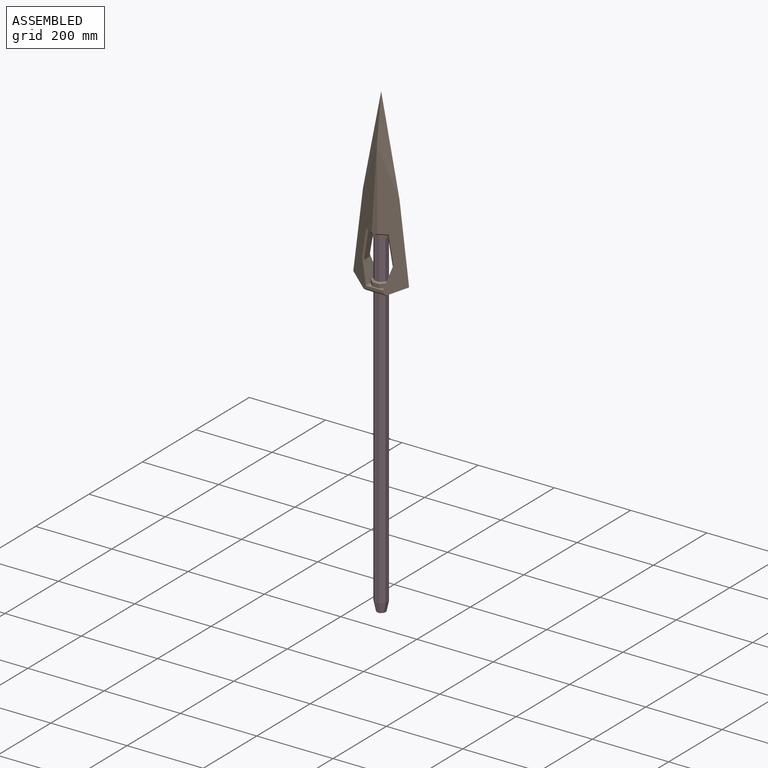
[diagram: assembled view]
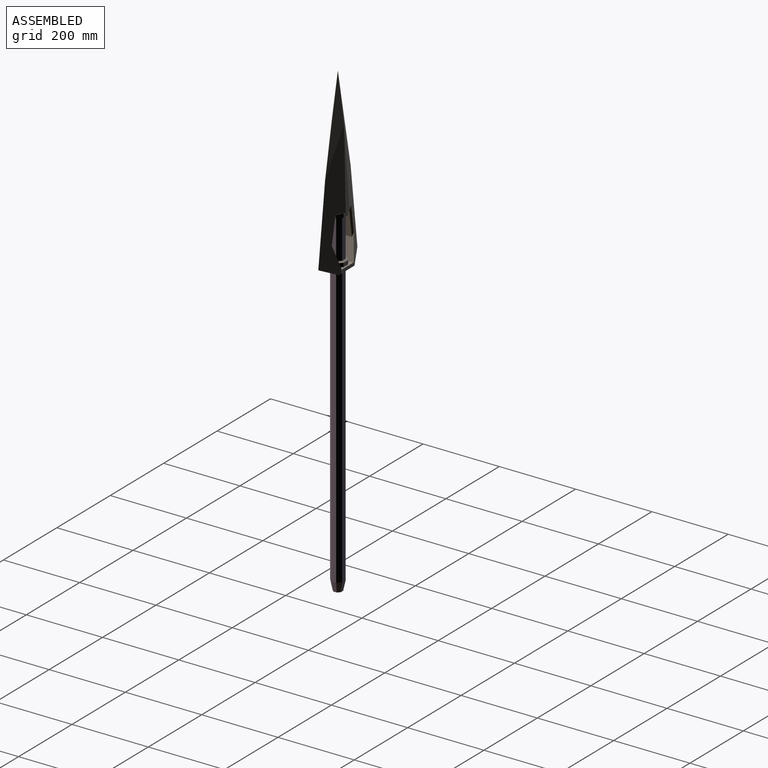
[diagram: assembled view, second angle]
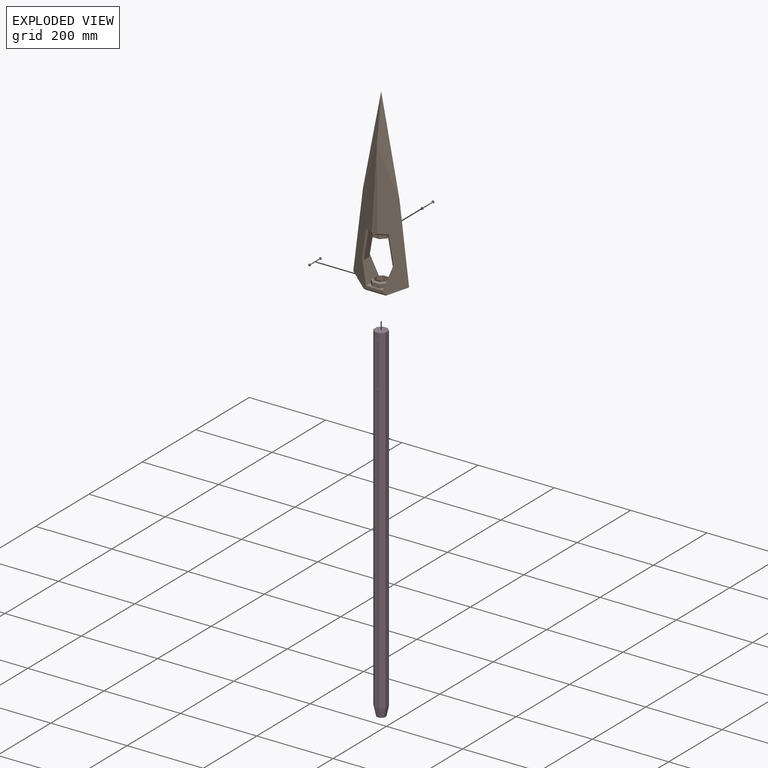
[diagram: exploded view]
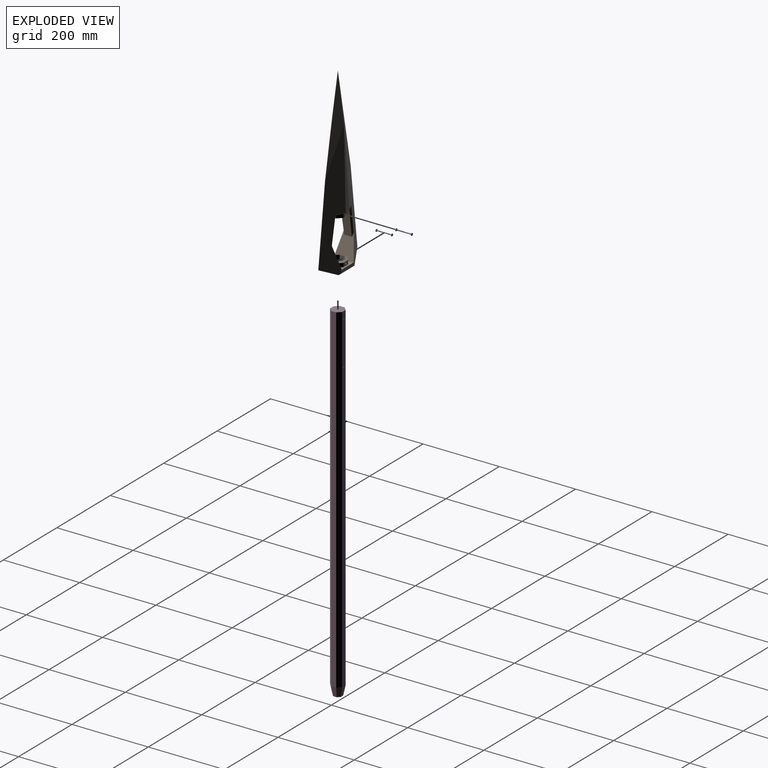
[diagram: exploded view, second angle]
ASSEMBLY  parts=4 mates=3
PART A: 7 faces, bbox 6.4x41.9x6.4 mm
  f0: cylinder r=1.27mm len=39.37mm, axis (0,-1,0), area 314.2mm2, adj f3,f4
  f1: plane 6.35x6.35mm, normal (0,-1,0), area 31.7mm2, adj f2
  f2: cylinder r=3.17mm len=6.35mm, axis (0,1,0), area 25.3mm2, adj f1,f3
  f3: plane 6.35x6.35mm, normal (0,1,0), area 26.6mm2, adj f0,f2
  f4: plane 6.35x6.35mm, normal (0,-1,0), area 26.6mm2, adj f0,f5
  f5: cylinder r=3.17mm len=6.35mm, axis (0,-1,0), area 25.3mm2, adj f4,f6
  f6: plane 6.35x6.35mm, normal (0,1,0), area 31.7mm2, adj f5
PART B: 98 faces, bbox 146.1x50.8x469.4 mm
  f0: plane 344.19x73.03mm, normal (0.44,-0.89,0.06), area 12180.3mm2, adj f1,f6,f9,f11,f17,f31,f32,f72
  f1: plane 344.19x73.03mm, normal (0.44,0.89,0.06), area 12180.3mm2, adj f0,f5,f9,f11,f19,f35,f36,f72
  f2: cylinder r=1.27mm len=3.81mm, axis (0,-1,0), area 30.4mm2, adj f59,f70
  f3: cylinder r=1.27mm len=3.81mm, axis (0,-1,0), area 30.4mm2, adj f28,f68
  f4: plane 50.8x44.45mm, normal (0,0,1), area 803mm2, adj f5,f6,f11,f12,f37,f38,f39,f40
  f5: plane 48.74x10.35mm, normal (0,1,0), area 367.4mm2, adj f1,f4,f11,f12,f16,f96
  f6: plane 48.74x10.35mm, normal (0,-1,0), area 367.4mm2, adj f0,f4,f11,f12,f15,f97
  f7: plane 1.62x0.8mm, normal (-0.94,0,-0.35), area 0.7mm2, adj f15,f16,f73
  f8: plane 50.8x40.64mm, normal (0,0,-1), area 1229.4mm2, adj f21,f22,f23,f24,f25,f26,f27,f28
  f9: plane 1.62x0.8mm, normal (0.94,0,-0.35), area 0.7mm2, adj f0,f1,f72
  f10: plane 76.2x22.92mm, normal (-0.99,0,-0.16), area 1648.7mm2, adj f11,f14,f31,f35
  f11: plane 60.42x50.8mm, normal (-0.95,0,0.3), area 2229.3mm2, adj f0,f1,f4,f5,f6,f10,f31,f35
  f12: plane 60.42x50.8mm, normal (0.95,0,0.3), area 2229.3mm2, adj f4,f5,f6,f13,f15,f16,f30,f33
  f13: plane 76.2x22.92mm, normal (0.99,0,-0.16), area 1648.7mm2, adj f12,f14,f30,f33
  f14: plane 53.29x50.8mm, normal (0,0,-1), area 492.4mm2, adj f10,f13,f29,f30,f31,f32,f33,f34
  f15: plane 344.19x73.03mm, normal (-0.44,-0.89,0.06), area 12180.3mm2, adj f6,f7,f12,f16,f18,f33,f34,f73
  f16: plane 344.19x73.03mm, normal (-0.44,0.89,0.06), area 12180.3mm2, adj f5,f7,f12,f15,f20,f29,f30,f73
  f17: plane 242.35x47.82mm, normal (0.56,-0.82,0.11), area 3561mm2, adj f0,f18,f19
  f18: plane 242.35x47.82mm, normal (-0.56,-0.82,0.11), area 3561mm2, adj f15,f17,f20
  f19: plane 242.35x47.82mm, normal (0.56,0.82,0.11), area 3561mm2, adj f1,f17,f20
  f20: plane 242.35x47.82mm, normal (-0.56,0.82,0.11), area 3561mm2, adj f16,f18,f19
  f21: plane 25.4x9.3mm, normal (-0.71,-0.71,0), area 334mm2, adj f8,f22,f28,f86
  f22: plane 25.4x13.15mm, normal (-1,0,0), area 334mm2, adj f8,f21,f23,f88
  f23: plane 25.4x9.3mm, normal (-0.71,0.71,0), area 334mm2, adj f8,f22,f24,f89
  f24: plane 25.4x13.15mm, normal (0,1,0), area 329mm2, adj f8,f23,f25,f65,f87
  f25: plane 25.4x9.3mm, normal (0.71,0.71,0), area 334mm2, adj f8,f24,f26,f85
  f26: plane 25.4x13.15mm, normal (1,0,0), area 334mm2, adj f8,f25,f27,f83
  f27: plane 25.4x9.3mm, normal (0.71,-0.71,0), area 334mm2, adj f8,f26,f28,f82
  f28: plane 25.4x13.15mm, normal (0,-1,0), area 329mm2, adj f3,f8,f21,f27,f84
  f29: plane 29.38x13.19mm, normal (-0.32,0.65,-0.69), area 124.6mm2, adj f14,f16,f30,f90
  f30: plane 79.52x15.7mm, normal (0.52,0.85,-0.1), area 393.4mm2, adj f12,f13,f14,f16,f29
  f31: plane 79.52x15.7mm, normal (-0.52,-0.85,-0.1), area 393.4mm2, adj f0,f10,f11,f14,f32
  f32: plane 29.38x13.19mm, normal (0.32,-0.65,-0.69), area 124.6mm2, adj f0,f14,f31,f95
  f33: plane 79.52x15.7mm, normal (0.52,-0.85,-0.1), area 393.4mm2, adj f12,f13,f14,f15,f34
  f34: plane 29.38x13.19mm, normal (-0.32,-0.65,-0.69), area 124.6mm2, adj f14,f15,f33,f93
  f35: plane 79.52x15.7mm, normal (-0.52,0.85,-0.1), area 393.4mm2, adj f1,f10,f11,f14,f36
  f36: plane 29.38x13.19mm, normal (0.32,0.65,-0.69), area 124.6mm2, adj f1,f14,f35,f92
  f37: plane 12.28x12.28mm, normal (0.71,-0.71,0), area 176.4mm2, adj f4,f38,f44,f89
  f38: plane 17.36x10.16mm, normal (1,0,0), area 176.4mm2, adj f4,f37,f39,f88
  f39: plane 12.28x12.28mm, normal (0.71,0.71,0), area 176.4mm2, adj f4,f38,f40,f86
  f40: plane 17.36x10.16mm, normal (0,1,0), area 144.7mm2, adj f4,f39,f41,f69,f84
  f41: plane 12.28x12.28mm, normal (-0.71,0.71,0), area 176.4mm2, adj f4,f40,f42,f82
  f42: plane 17.36x10.16mm, normal (-1,0,0), area 176.4mm2, adj f4,f41,f43,f83
  f43: plane 12.28x12.28mm, normal (-0.71,-0.71,0), area 176.4mm2, adj f4,f42,f44,f85
  f44: plane 17.36x10.16mm, normal (0,-1,0), area 144.7mm2, adj f4,f37,f43,f67,f87
  f45: plane 12.28x12.28mm, normal (0.71,-0.71,0), area 176.4mm2, adj f14,f46,f52,f76
  f46: plane 17.36x10.16mm, normal (0,-1,0), area 144.7mm2, adj f14,f45,f47,f64,f78
  f47: plane 12.28x12.28mm, normal (-0.71,-0.71,0), area 176.4mm2, adj f14,f46,f48,f80
  f48: plane 17.36x10.16mm, normal (-1,0,0), area 176.4mm2, adj f14,f47,f49,f81
  f49: plane 12.28x12.28mm, normal (-0.71,0.71,0), area 176.4mm2, adj f14,f48,f50,f79
  f50: plane 17.36x10.16mm, normal (0,1,0), area 144.7mm2, adj f14,f49,f51,f71,f77
  f51: plane 12.28x12.28mm, normal (0.71,0.71,0), area 176.4mm2, adj f14,f50,f52,f75
  f52: plane 17.36x10.16mm, normal (1,0,0), area 176.4mm2, adj f14,f45,f51,f74
  f53: plane 31.75x31.75mm, normal (0,0,-1), area 835.1mm2, adj f54,f55,f56,f57,f58,f59,f60,f61
  f54: plane 25.4x9.3mm, normal (-0.71,0.71,0), area 334mm2, adj f53,f55,f61,f76
  f55: plane 25.4x13.15mm, normal (0,1,0), area 329mm2, adj f53,f54,f56,f62,f78
  f56: plane 25.4x9.3mm, normal (0.71,0.71,0), area 334mm2, adj f53,f55,f57,f80
  f57: plane 25.4x13.15mm, normal (1,0,0), area 334mm2, adj f53,f56,f58,f81
  f58: plane 25.4x9.3mm, normal (0.71,-0.71,0), area 334mm2, adj f53,f57,f59,f79
  f59: plane 25.4x13.15mm, normal (0,-1,0), area 329mm2, adj f2,f53,f58,f60,f77
  f60: plane 25.4x9.3mm, normal (-0.71,-0.71,0), area 334mm2, adj f53,f59,f61,f75
  f61: plane 25.4x13.15mm, normal (-1,0,0), area 334mm2, adj f53,f54,f60,f74
  f62: cylinder r=1.27mm len=3.81mm, axis (0,-1,0), area 30.4mm2, adj f55,f63
  f63: plane 6.35x6.35mm, normal (0,-1,0), area 26.6mm2, adj f62,f64
  f64: cylinder r=3.17mm len=6.35mm, axis (0,-1,0), area 25.3mm2, adj f46,f63
  f65: cylinder r=1.27mm len=3.81mm, axis (0,-1,0), area 30.4mm2, adj f24,f66
  f66: plane 6.35x6.35mm, normal (0,-1,0), area 26.6mm2, adj f65,f67
  f67: cylinder r=3.17mm len=6.35mm, axis (0,-1,0), area 25.3mm2, adj f44,f66
  f68: plane 6.35x6.35mm, normal (0,1,0), area 26.6mm2, adj f3,f69
  f69: cylinder r=3.17mm len=6.35mm, axis (0,1,0), area 25.3mm2, adj f40,f68
  f70: plane 6.35x6.35mm, normal (0,1,0), area 26.6mm2, adj f2,f71
  f71: cylinder r=3.17mm len=6.35mm, axis (0,1,0), area 25.3mm2, adj f50,f70
  f72: plane 47.02x45.42mm, normal (0.45,0,-0.89), area 1323.3mm2, adj f0,f1,f8,f9,f96,f97
  f73: plane 47.02x45.42mm, normal (-0.45,0,-0.89), area 1323.3mm2, adj f7,f8,f15,f16,f96,f97
  f74: plane 17.36x5.08mm, normal (0.45,0,-0.89), area 86.6mm2, adj f52,f61,f75,f76
  f75: plane 14.38x14.38mm, normal (0.32,0.32,-0.89), area 86.6mm2, adj f51,f60,f74,f77
  f76: plane 14.38x14.38mm, normal (0.32,-0.32,-0.89), area 86.6mm2, adj f45,f54,f74,f78
  f77: plane 17.36x5.08mm, normal (0,0.45,-0.89), area 86.6mm2, adj f50,f59,f75,f79
  f78: plane 17.36x5.08mm, normal (0,-0.45,-0.89), area 86.6mm2, adj f46,f55,f76,f80
  f79: plane 14.38x14.38mm, normal (-0.32,0.32,-0.89), area 86.6mm2, adj f49,f58,f77,f81
  f80: plane 14.38x14.38mm, normal (-0.32,-0.32,-0.89), area 86.6mm2, adj f47,f56,f78,f81
  f81: plane 17.36x5.08mm, normal (-0.45,0,-0.89), area 86.6mm2, adj f48,f57,f79,f80
  f82: plane 14.38x14.38mm, normal (-0.32,0.32,0.89), area 86.6mm2, adj f27,f41,f83,f84
  f83: plane 17.36x5.08mm, normal (-0.45,0,0.89), area 86.6mm2, adj f26,f42,f82,f85
  f84: plane 17.36x5.08mm, normal (0,0.45,0.89), area 86.6mm2, adj f28,f40,f82,f86
  f85: plane 14.38x14.38mm, normal (-0.32,-0.32,0.89), area 86.6mm2, adj f25,f43,f83,f87
  f86: plane 14.38x14.38mm, normal (0.32,0.32,0.89), area 86.6mm2, adj f21,f39,f84,f88
  f87: plane 17.36x5.08mm, normal (0,-0.45,0.89), area 86.6mm2, adj f24,f44,f85,f89
  f88: plane 17.36x5.08mm, normal (0.45,0,0.89), area 86.6mm2, adj f22,f38,f86,f89
  f89: plane 14.38x14.38mm, normal (0.32,-0.32,0.89), area 86.6mm2, adj f23,f37,f87,f88
  f90: plane 206.88x9.09mm, normal (0.02,1,0.04), area 730.9mm2, adj f16,f29,f91
  f91: plane 206.88x9.09mm, normal (0,1,0.04), area 14.7mm2, adj f14,f90,f92
  f92: plane 206.88x9.09mm, normal (-0.02,1,0.04), area 730.9mm2, adj f1,f36,f91
  f93: plane 206.88x9.09mm, normal (0.02,-1,0.04), area 730.9mm2, adj f15,f34,f94
  f94: plane 206.88x9.09mm, normal (0,-1,0.04), area 14.7mm2, adj f14,f93,f95
  f95: plane 206.88x9.09mm, normal (-0.02,-1,0.04), area 730.9mm2, adj f0,f32,f94
  f96: plane 60.25x5.08mm, normal (0,0.71,-0.71), area 395mm2, adj f1,f5,f8,f16,f72,f73
  f97: plane 60.25x5.08mm, normal (0,-0.71,-0.71), area 395mm2, adj f0,f6,f8,f15,f72,f73
PART C: same geometry as A
PART D: 20 faces, bbox 31.8x31.8x914.4 mm
  f0: plane 889x9.3mm, normal (0.71,0.71,0), area 11691.5mm2, adj f1,f7,f9,f19
  f1: plane 889x13.15mm, normal (1,0,0), area 11691.5mm2, adj f0,f2,f9,f18
  f2: plane 889x9.3mm, normal (0.71,-0.71,0), area 11691.5mm2, adj f1,f3,f9,f16
  f3: plane 889x13.15mm, normal (0,-1,0), area 11681.4mm2, adj f2,f4,f9,f10,f11,f14
  f4: plane 889x9.3mm, normal (-0.71,-0.71,0), area 11691.5mm2, adj f3,f5,f9,f12
  f5: plane 889x13.15mm, normal (-1,0,0), area 11691.5mm2, adj f4,f6,f9,f13
  f6: plane 889x9.3mm, normal (-0.71,0.71,0), area 11691.5mm2, adj f5,f7,f9,f15
  f7: plane 889x13.15mm, normal (0,1,0), area 11681.4mm2, adj f0,f6,f9,f10,f11,f17
  f8: plane 21.59x21.59mm, normal (0,0,-1), area 386.2mm2, adj f12,f13,f14,f15,f16,f17,f18,f19
  f9: plane 31.75x31.75mm, normal (0,0,1), area 835.1mm2, adj f0,f1,f2,f3,f4,f5,f6,f7
  f10: cylinder r=1.27mm len=31.75mm, axis (0,-1,0), area 253.4mm2, adj f3,f7
  f11: cylinder r=1.27mm len=31.75mm, axis (0,-1,0), area 253.4mm2, adj f3,f7
  f12: plane 25.4x11.4mm, normal (-0.69,-0.69,-0.2), area 286.2mm2, adj f4,f8,f13,f14
  f13: plane 25.4x13.15mm, normal (-0.98,0,-0.2), area 286.2mm2, adj f5,f8,f12,f15
  f14: plane 25.4x13.15mm, normal (0,-0.98,-0.2), area 286.2mm2, adj f3,f8,f12,f16
  f15: plane 25.4x11.4mm, normal (-0.69,0.69,-0.2), area 286.2mm2, adj f6,f8,f13,f17
  f16: plane 25.4x11.4mm, normal (0.69,-0.69,-0.2), area 286.2mm2, adj f2,f8,f14,f18
  f17: plane 25.4x13.15mm, normal (0,0.98,-0.2), area 286.2mm2, adj f7,f8,f15,f19
  f18: plane 25.4x13.15mm, normal (0.98,0,-0.2), area 286.2mm2, adj f1,f8,f16,f19
  f19: plane 25.4x11.4mm, normal (0.69,0.69,-0.2), area 286.2mm2, adj f0,f8,f17,f18
PLACE A t=(-17.17,405.07,473.45)mm
PLACE B t=(-17.17,405.07,473.45)mm
PLACE C t=(-17.17,405.07,359.15)mm
PLACE D t=(-17.17,405.07,473.45)mm
MATE fastened C.f0 <-> B.f3  axis (0,1,0) through (-17.17,385.39,289.3)mm
MATE fastened A.f0 <-> B.f2  axis (0,-1,0) through (-17.17,385.39,403.6)mm
MATE fastened D.f9 <-> B.f53  axis (0,0,1) through (-17.17,405.07,422.65)mm
